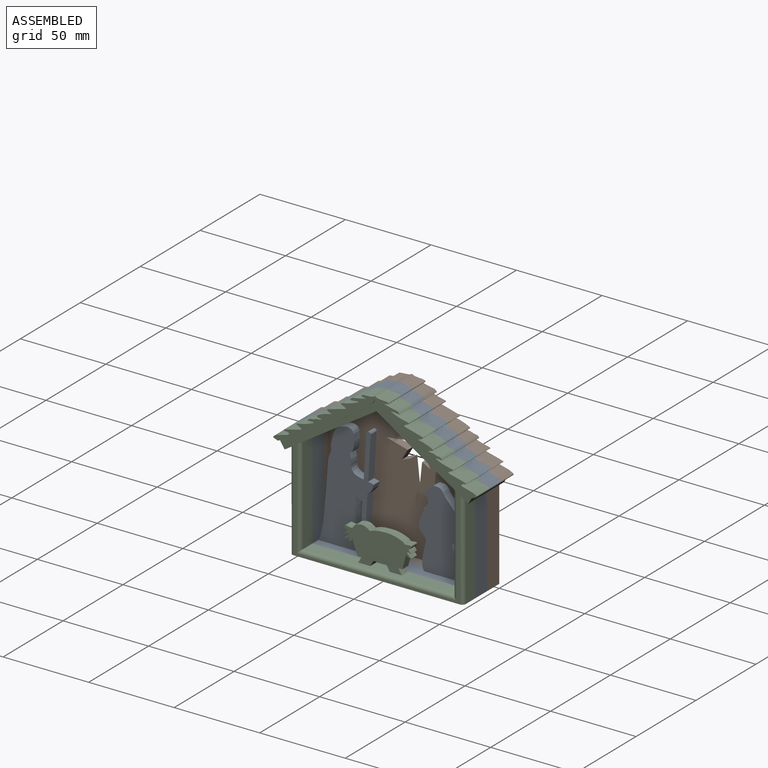
[diagram: assembled view]
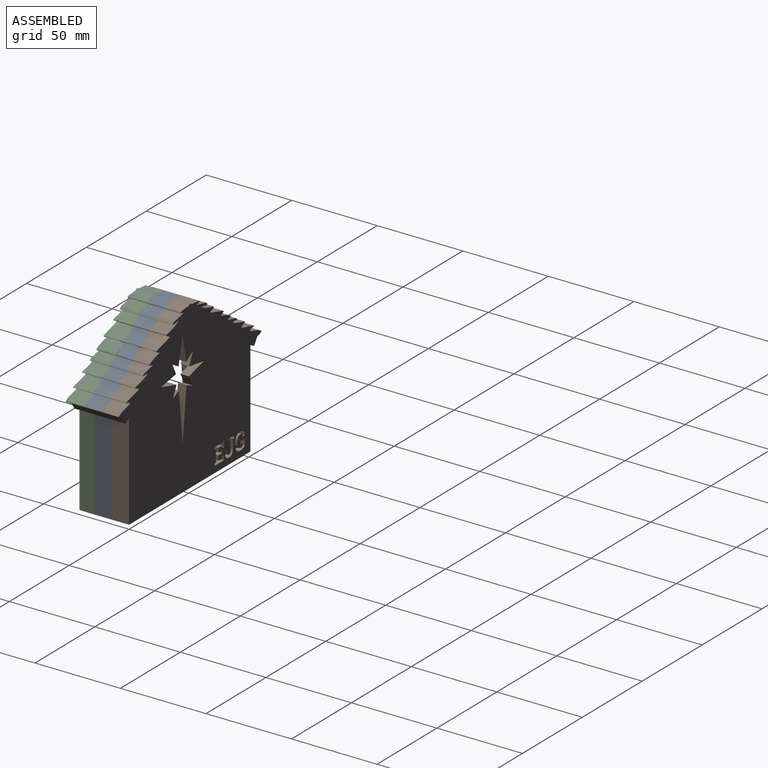
[diagram: assembled view, second angle]
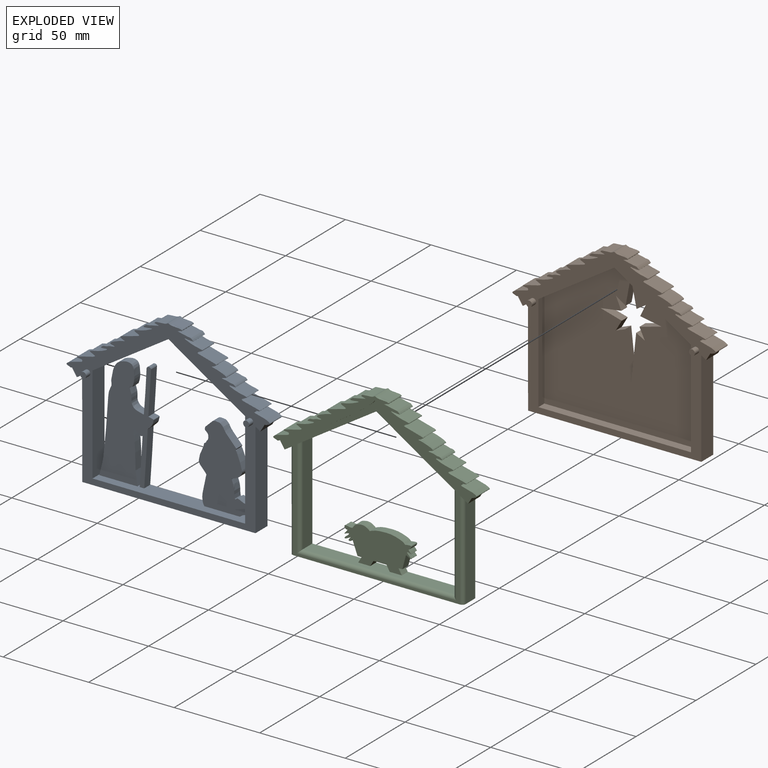
[diagram: exploded view]
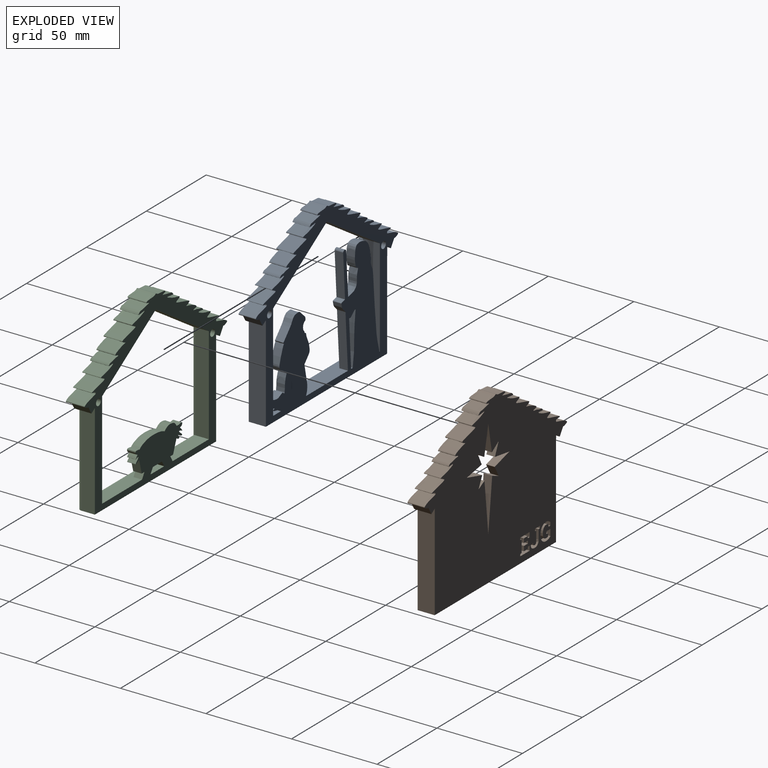
[diagram: exploded view, second angle]
ASSEMBLY  parts=3 mates=2
PART A: 31 faces, bbox 119.4x13.5x97.3 mm
  f0: plane 53.05x10mm, normal (-1,0,0), area 530.5mm2, adj f1,f12,f13,f14
  f1: plane 10x3.44mm, normal (-1,0,0), area 34.4mm2, adj f0,f2,f13,f14
  f2: plane 101.27x10mm, normal (0,0,-1), area 1012.7mm2, adj f1,f3,f13,f14
  f3: plane 56.29x10mm, normal (1,0,0), area 562.9mm2, adj f2,f4,f13,f14
  f4: plane 10x2.8mm, normal (-0.54,0,-0.84), area 33.2mm2, adj f3,f5,f13,f14
  f5: plane 10x4.34mm, normal (0.86,0,-0.52), area 50.7mm2, adj f4,f13,f14,f15
  f6: plane 10x4.38mm, normal (-0.84,0,-0.54), area 52.1mm2, adj f12,f13,f14,f16
  f7: plane 89.2x10mm, normal (0,0,1), area 663.5mm2, adj f8,f11,f13,f14,f17,f18,f19,f20
  f8: plane 57.08x10mm, normal (1,0,0), area 570.8mm2, adj f7,f9,f13,f14
  f9: plane 44.35x28.41mm, normal (0.54,0,-0.84), area 526.7mm2, adj f8,f10,f13,f14
  f10: plane 44.85x28.73mm, normal (-0.54,0,-0.84), area 532.6mm2, adj f9,f11,f13,f14
  f11: plane 56.76x10mm, normal (-1,0,0), area 544.9mm2, adj f7,f10,f13,f14,f20,f21,f22
  f12: plane 10x3.11mm, normal (0.54,0,-0.84), area 36.9mm2, adj f0,f6,f13,f14
  f13: plane 119.38x97.32mm, normal (0,-1,0), area 2052.6mm2, adj f0,f1,f2,f3,f4,f5,f6,f7
  f14: plane 119.38x97.32mm, normal (0,1,0), area 4023.4mm2, adj f0,f1,f2,f3,f4,f5,f6,f7
  f15: extruded ~59.26x38.44mm, area 1239.6mm2, adj f5,f13,f14,f16
  f16: extruded ~59.2x38.4mm, area 1245.2mm2, adj f6,f13,f14,f15
  f17: extruded ~30.05x5.43mm, area 320.3mm2, adj f7,f14,f19
  f18: extruded ~64.88x31.71mm, area 899.9mm2, adj f7,f14,f19
  f19: plane 64.91x31.78mm, normal (0,-1,0), area 1165.8mm2, adj f7,f17,f18
  f20: plane 46.93x30.9mm, normal (0,-1,0), area 887.8mm2, adj f7,f11,f21,f22
  f21: extruded ~46.68x30.49mm, area 571.4mm2, adj f7,f11,f14,f20
  f22: extruded ~6.59x5mm, area 46.7mm2, adj f7,f11,f14,f20
  f23: cylinder r=2mm len=4mm, axis (0,1,0), area 50.3mm2, adj f14,f24
  f24: plane 4x4mm, normal (0,1,0), area 12.6mm2, adj f23
  f25: cylinder r=2mm len=4mm, axis (0,1,0), area 50.3mm2, adj f14,f26
  f26: plane 4x4mm, normal (0,1,0), area 12.6mm2, adj f25
  f27: cylinder r=1.75mm len=3.5mm, axis (0,1,0), area 38.5mm2, adj f13,f28
  f28: plane 3.5x3.5mm, normal (0,-1,0), area 9.6mm2, adj f27
  f29: cylinder r=1.75mm len=3.5mm, axis (0,1,0), area 38.5mm2, adj f13,f30
  f30: plane 3.5x3.5mm, normal (0,-1,0), area 9.6mm2, adj f29
PART B: 104 faces, bbox 119.4x13.5x97.3 mm
  f0: plane 119.38x97.32mm, normal (0,1,0), area 7919.5mm2, adj f1,f2,f3,f4,f5,f6,f7,f13
  f1: plane 53.05x10mm, normal (-1,0,0), area 530.5mm2, adj f0,f2,f13,f14
  f2: plane 10x3.44mm, normal (-1,0,0), area 34.4mm2, adj f0,f1,f3,f14
  f3: plane 101.27x10mm, normal (0,0,-1), area 1012.7mm2, adj f0,f2,f4,f14
  f4: plane 56.29x10mm, normal (1,0,0), area 562.9mm2, adj f0,f3,f5,f14
  f5: plane 10x2.8mm, normal (-0.54,0,-0.84), area 33.2mm2, adj f0,f4,f6,f14
  f6: plane 10x4.34mm, normal (0.86,0,-0.52), area 50.7mm2, adj f0,f5,f14,f15
  f7: plane 10x4.38mm, normal (-0.84,0,-0.54), area 52.1mm2, adj f0,f13,f14,f16
  f8: plane 89.2x5mm, normal (0,0,1), area 446mm2, adj f9,f12,f14,f17
  f9: plane 57.08x5mm, normal (1,0,0), area 285.4mm2, adj f8,f10,f14,f17
  f10: plane 44.35x28.41mm, normal (0.54,0,-0.84), area 263.4mm2, adj f9,f11,f14,f17
  f11: plane 44.85x28.73mm, normal (-0.54,0,-0.84), area 266.3mm2, adj f10,f12,f14,f17
  f12: plane 56.76x5mm, normal (-1,0,0), area 283.8mm2, adj f8,f11,f14,f17
  f13: plane 10x3.11mm, normal (0.54,0,-0.84), area 36.9mm2, adj f0,f1,f7,f14
  f14: plane 119.38x97.32mm, normal (0,-1,0), area 2052.6mm2, adj f1,f2,f3,f4,f5,f6,f7,f8
  f15: extruded ~59.26x38.44mm, area 1239.6mm2, adj f0,f6,f14,f16
  f16: extruded ~59.2x38.4mm, area 1245.2mm2, adj f0,f7,f14,f15
  f17: plane 89.2x85.49mm, normal (0,-1,0), area 5967mm2, adj f8,f9,f10,f11,f12,f18,f19,f20
  f18: plane 29.56x5mm, normal (0.99,0,0.11), area 148.7mm2, adj f0,f17,f19,f33
  f19: plane 29.35x5mm, normal (-0.99,0,0.11), area 147.6mm2, adj f0,f17,f18,f20
  f20: plane 5x4.96mm, normal (0.47,0,0.88), area 28.2mm2, adj f0,f17,f19,f21
  f21: plane 6.38x5mm, normal (-0.9,0,-0.43), area 35.3mm2, adj f0,f17,f20,f22
  f22: plane 12.89x5mm, normal (-0.26,0,0.96), area 66.9mm2, adj f0,f17,f21,f23
  f23: plane 12.49x5mm, normal (-0.18,0,-0.98), area 63.4mm2, adj f0,f17,f22,f24
  f24: plane 6.68x5mm, normal (-0.9,0,0.44), area 37.2mm2, adj f0,f17,f23,f25
  f25: plane 5.39x5mm, normal (0.54,0,-0.84), area 32.1mm2, adj f0,f17,f24,f26
  f26: plane 16.13x5mm, normal (-0.98,0,-0.2), area 82.4mm2, adj f0,f17,f25,f27
  f27: plane 16.13x5mm, normal (0.98,0,-0.18), area 82mm2, adj f0,f17,f26,f28
  f28: plane 5.67x5mm, normal (-0.56,0,-0.83), area 34.1mm2, adj f0,f17,f27,f29
  f29: plane 7.2x5mm, normal (0.92,0,0.4), area 39.2mm2, adj f0,f17,f28,f30
  f30: plane 12.09x5mm, normal (0.14,0,-0.99), area 61.1mm2, adj f0,f17,f29,f31
  f31: plane 12.39x5mm, normal (0.27,0,0.96), area 64.3mm2, adj f0,f17,f30,f32
  f32: plane 6.11x5mm, normal (0.86,0,-0.5), area 35.3mm2, adj f0,f17,f31,f33
  f33: plane 5.58x5mm, normal (-0.37,0,0.93), area 30mm2, adj f0,f17,f18,f32
  f34: cylinder r=1.75mm len=3.5mm, axis (0,1,0), area 38.5mm2, adj f14,f35
  f35: plane 3.5x3.5mm, normal (0,-1,0), area 9.6mm2, adj f34
  f36: cylinder r=1.75mm len=3.5mm, axis (0,1,0), area 38.5mm2, adj f14,f37
  f37: plane 3.5x3.5mm, normal (0,-1,0), area 9.6mm2, adj f36
  f38: extruded ~3x1.4mm, area 5mm2, adj f0,f39,f63,f64
  f39: plane 3.79x3mm, normal (1,0,0), area 11.4mm2, adj f0,f38,f40,f64
  f40: plane 3.4x3mm, normal (0,0,-1), area 10.2mm2, adj f0,f39,f41,f64
  f41: plane 3x1.39mm, normal (-1,0,0), area 4.2mm2, adj f0,f40,f42,f64
  f42: plane 3x1.41mm, normal (-0.08,0,1), area 4.2mm2, adj f0,f41,f43,f64
  f43: plane 3x1.68mm, normal (-1,0,0), area 5mm2, adj f0,f42,f44,f64
  f44: extruded ~3x0.58mm, area 1.9mm2, adj f0,f43,f45,f64
  f45: extruded ~3x0.97mm, area 2.9mm2, adj f0,f44,f46,f64
  f46: extruded ~3x2.04mm, area 6.9mm2, adj f0,f45,f47,f64
  f47: extruded ~3x2.4mm, area 7.7mm2, adj f0,f46,f48,f64
  f48: plane 3x0.35mm, normal (1,0,0), area 1.1mm2, adj f0,f47,f49,f64
  f49: extruded ~3x2.5mm, area 7.9mm2, adj f0,f48,f50,f64
  f50: extruded ~3x2.02mm, area 7mm2, adj f0,f49,f51,f64
  f51: extruded ~3x1.02mm, area 3.1mm2, adj f0,f50,f52,f64
  f52: extruded ~3x0.72mm, area 2.4mm2, adj f0,f51,f53,f64
  f53: plane 3x1.32mm, normal (-0.98,0,0.21), area 4.1mm2, adj f0,f52,f54,f64
  f54: plane 3x1.47mm, normal (0,0,1), area 4.4mm2, adj f0,f53,f55,f64
  f55: plane 3x1.99mm, normal (1,0,0), area 6mm2, adj f0,f54,f56,f64
  f56: extruded ~3x1.6mm, area 5.7mm2, adj f0,f55,f57,f64
  f57: extruded ~3x2.12mm, area 6.5mm2, adj f0,f56,f58,f64
  f58: extruded ~3.23x3mm, area 10.9mm2, adj f0,f57,f59,f64
  f59: extruded ~3.61x3mm, area 11.7mm2, adj f0,f58,f60,f64
  f60: plane 3x0.34mm, normal (-1,0,0), area 1mm2, adj f0,f59,f61,f64
  f61: extruded ~3.48x3mm, area 11.4mm2, adj f0,f60,f62,f64
  f62: extruded ~3.26x3mm, area 10.9mm2, adj f0,f61,f63,f64
  f63: extruded ~3x2.33mm, area 7.1mm2, adj f0,f38,f62,f64
  f64: plane 10.16x8.25mm, normal (0,1,0), area 43.4mm2, adj f38,f39,f40,f41,f42,f43,f44,f45
  f65: plane 3x1.19mm, normal (1,0,0), area 3.6mm2, adj f0,f66,f81,f82
  f66: plane 4.09x3mm, normal (0,0,-1), area 12.3mm2, adj f0,f65,f67,f82
  f67: plane 3x1.19mm, normal (-1,0,0), area 3.6mm2, adj f0,f66,f68,f82
  f68: plane 3x1.06mm, normal (-0.19,0,0.98), area 3.2mm2, adj f0,f67,f69,f82
  f69: plane 5.51x3mm, normal (-1,0,0), area 16.5mm2, adj f0,f68,f70,f82
  f70: extruded ~3x1.16mm, area 3.8mm2, adj f0,f69,f71,f82
  f71: extruded ~3x0.93mm, area 3.2mm2, adj f0,f70,f72,f82
  f72: extruded ~3x1mm, area 3.3mm2, adj f0,f71,f73,f82
  f73: extruded ~3x1.14mm, area 3.7mm2, adj f0,f72,f74,f82
  f74: plane 3x1.93mm, normal (0,0,-1), area 5.8mm2, adj f0,f73,f75,f82
  f75: plane 3x0.04mm, normal (-0.94,0,-0.35), area 0.1mm2, adj f0,f74,f76,f82
  f76: extruded ~3x2.22mm, area 7.4mm2, adj f0,f75,f77,f82
  f77: extruded ~3x2.45mm, area 7.8mm2, adj f0,f76,f78,f82
  f78: extruded ~3x2.36mm, area 7.7mm2, adj f0,f77,f79,f82
  f79: extruded ~3x2.27mm, area 7.6mm2, adj f0,f78,f80,f82
  f80: plane 5.51x3mm, normal (1,0,0), area 16.5mm2, adj f0,f79,f81,f82
  f81: plane 3x1.06mm, normal (0.19,0,0.98), area 3.2mm2, adj f0,f65,f80,f82
  f82: plane 10.02x7.7mm, normal (0,1,0), area 29.5mm2, adj f65,f66,f67,f68,f69,f70,f71,f72
  f83: plane 3.34x3mm, normal (0,0,1), area 10mm2, adj f0,f84,f102,f103
  f84: plane 3x1.53mm, normal (1,0,0), area 4.6mm2, adj f0,f83,f85,f103
  f85: plane 3.34x3mm, normal (0,0,-1), area 10mm2, adj f0,f84,f86,f103
  f86: plane 3x2.48mm, normal (1,0,0), area 7.4mm2, adj f0,f85,f87,f103
  f87: plane 3.16x3mm, normal (0,0,1), area 9.5mm2, adj f0,f86,f88,f103
  f88: plane 3x1.18mm, normal (-1,0,0.08), area 3.6mm2, adj f0,f87,f89,f103
  f89: plane 3x1.52mm, normal (0,0,1), area 4.6mm2, adj f0,f88,f90,f103
  f90: plane 3x2.71mm, normal (1,0,0), area 8.1mm2, adj f0,f89,f91,f103
  f91: plane 7.8x3mm, normal (0,0,-1), area 23.4mm2, adj f0,f90,f92,f103
  f92: plane 3x1.19mm, normal (-1,0,0), area 3.6mm2, adj f0,f91,f93,f103
  f93: plane 3x1.05mm, normal (-0.19,0,0.98), area 3.2mm2, adj f0,f92,f94,f103
  f94: plane 7.09x3mm, normal (-1,0,0), area 21.3mm2, adj f0,f93,f95,f103
  f95: plane 3x1.05mm, normal (-0.19,0,-0.98), area 3.2mm2, adj f0,f94,f96,f103
  f96: plane 3x1.19mm, normal (-1,0,0), area 3.6mm2, adj f0,f95,f97,f103
  f97: plane 7.81x3mm, normal (0,0,1), area 23.4mm2, adj f0,f96,f98,f103
  f98: plane 3x2.7mm, normal (1,0,0), area 8.1mm2, adj f0,f97,f99,f103
  f99: plane 3x1.51mm, normal (0,0,-1), area 4.5mm2, adj f0,f98,f100,f103
  f100: plane 3x1.18mm, normal (-1,0,-0.07), area 3.6mm2, adj f0,f99,f101,f103
  f101: plane 3.19x3mm, normal (0,0,-1), area 9.6mm2, adj f0,f100,f102,f103
  f102: plane 3x2.82mm, normal (1,0,0), area 8.5mm2, adj f0,f83,f101,f103
  f103: plane 9.87x7.81mm, normal (0,1,0), area 45.6mm2, adj f83,f84,f85,f86,f87,f88,f89,f90
PART C: 41 faces, bbox 119.4x11x97.3 mm
  f0: plane 89.2x8mm, normal (0,0,1), area 643.4mm2, adj f9,f12,f14,f24,f25,f27,f28,f30
  f1: plane 112.67x95.04mm, normal (0,-1,0), area 823.6mm2, adj f4,f6,f7,f8,f10,f11,f13,f15
  f2: plane 53.05x8mm, normal (-1,0,0), area 424.4mm2, adj f3,f13,f14,f34
  f3: plane 8x3.44mm, normal (-1,0,0), area 27.6mm2, adj f2,f4,f14,f35
  f4: plane 101.27x10mm, normal (0,0,-1), area 1011mm2, adj f1,f3,f5,f14,f35,f36
  f5: plane 56.29x8mm, normal (1,0,0), area 450.3mm2, adj f4,f6,f14,f36
  f6: plane 10x4.8mm, normal (-0.54,0,-0.84), area 34.3mm2, adj f1,f5,f7,f14,f36
  f7: plane 10x4.34mm, normal (0.86,0,-0.52), area 50.7mm2, adj f1,f6,f14,f15
  f8: plane 10x4.38mm, normal (-0.84,0,-0.54), area 52.1mm2, adj f1,f13,f14,f18
  f9: plane 57.08x8mm, normal (1,0,0), area 456.6mm2, adj f0,f10,f14,f33
  f10: plane 46.35x29.69mm, normal (0.54,0,-0.84), area 527.8mm2, adj f1,f9,f11,f14,f33
  f11: plane 46.85x30.02mm, normal (-0.54,0,-0.84), area 533.6mm2, adj f1,f10,f12,f14,f31
  f12: plane 56.76x8mm, normal (-1,0,0), area 454.1mm2, adj f0,f11,f14,f31
  f13: plane 10x5.1mm, normal (0.54,0,-0.84), area 37.9mm2, adj f1,f2,f8,f14,f34
  f14: plane 119.38x97.32mm, normal (0,1,0), area 2613.6mm2, adj f0,f2,f3,f4,f5,f6,f7,f8
  f15: extruded ~59.2x38.4mm, area 1364.1mm2, adj f1,f7,f14,f17,f18,f19
  f16: extruded ~56.26x36.16mm, area 67.2mm2, adj f1,f17,f18,f19
  f17: extruded ~56.26x36.16mm, area 67.2mm2, adj f1,f15,f16,f19
  f18: extruded ~59.2x38.4mm, area 1369.7mm2, adj f8,f14,f15,f16,f19
  f19: plane 119.38x38.71mm, normal (0,-1,0), area 607.8mm2, adj f15,f16,f17,f18
  f20: plane 8.1x5mm, normal (0.97,0,-0.26), area 41.9mm2, adj f14,f21,f29,f30
  f21: extruded ~38.8x10.38mm, area 366.7mm2, adj f14,f20,f22,f30
  f22: plane 8.06x5mm, normal (-0.94,0,-0.35), area 43mm2, adj f14,f21,f23,f30
  f23: plane 5x2.34mm, normal (0,0,-1), area 11.7mm2, adj f14,f22,f24,f30
  f24: plane 5x3.32mm, normal (-0.86,0,0.5), area 19.2mm2, adj f0,f14,f23,f30
  f25: plane 5x3.23mm, normal (0.86,0,-0.52), area 18.9mm2, adj f0,f14,f26,f30
  f26: plane 7.53x5mm, normal (0,0,-1), area 37.6mm2, adj f14,f25,f27,f30
  f27: plane 5x3.23mm, normal (-0.85,0,-0.52), area 19mm2, adj f0,f14,f26,f30
  f28: plane 5x3.28mm, normal (0.85,0,0.52), area 19.3mm2, adj f0,f14,f29,f30
  f29: plane 5x2.26mm, normal (0,0,-1), area 11.3mm2, adj f14,f20,f28,f30
  f30: plane 39.27x20.64mm, normal (0,-1,0), area 568.7mm2, adj f0,f20,f21,f22,f23,f24,f25,f26
  f31: cylinder r=2mm len=58.76mm, axis (0,0,1), area 179.1mm2, adj f1,f11,f12,f32
  f32: cylinder r=2mm len=93.2mm, axis (1,0,0), area 284.8mm2, adj f0,f1,f31,f33
  f33: cylinder r=2mm len=59.08mm, axis (0,0,-1), area 180.1mm2, adj f1,f9,f10,f32
  f34: cylinder r=2mm len=54.33mm, axis (0,0,1), area 168.1mm2, adj f1,f2,f13,f35
  f35: cylinder r=2mm len=3.45mm, axis (0,0,1), area 10.8mm2, adj f1,f3,f4,f34
  f36: cylinder r=2mm len=57.57mm, axis (0,0,-1), area 178.3mm2, adj f1,f4,f5,f6
  f37: cylinder r=2mm len=4mm, axis (0,1,0), area 50.3mm2, adj f14,f38
  f38: plane 4x4mm, normal (0,1,0), area 12.6mm2, adj f37
  f39: cylinder r=2mm len=4mm, axis (0,1,0), area 50.3mm2, adj f14,f40
  f40: plane 4x4mm, normal (0,1,0), area 12.6mm2, adj f39
PLACE A t=(-50.99,-10,48.86)mm
PLACE B t=(-50.99,-5,48.86)mm
PLACE C t=(-50.99,-20,48.86)mm
MATE fastened A.f14 <-> B.f14  axis (0,1,0) through (-6.05,-10,3.44)mm
MATE fastened A.f13 <-> C.f14  axis (0,-1,0) through (-6.05,-20,3.44)mm
